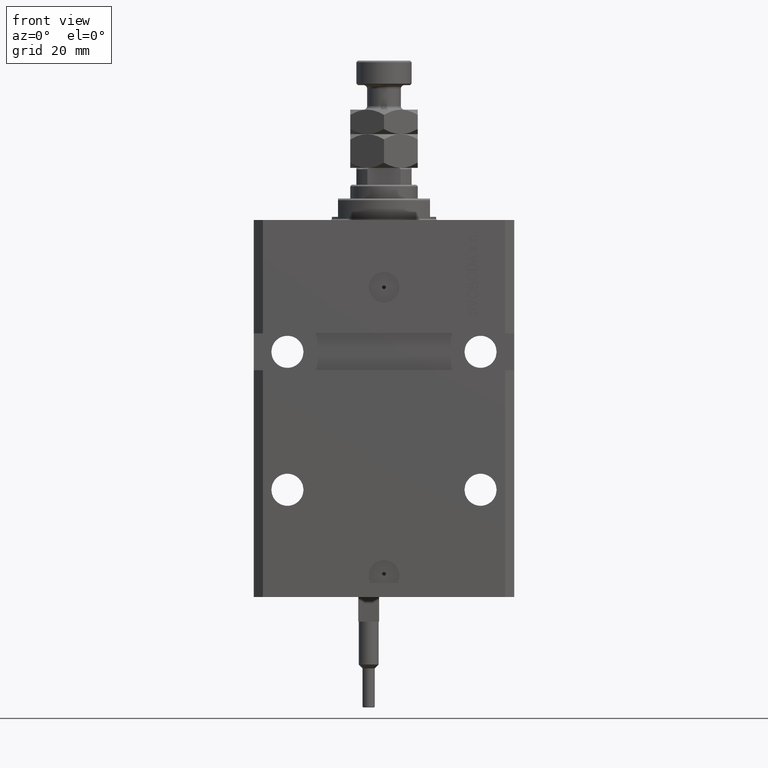
[diagram: clean part render]
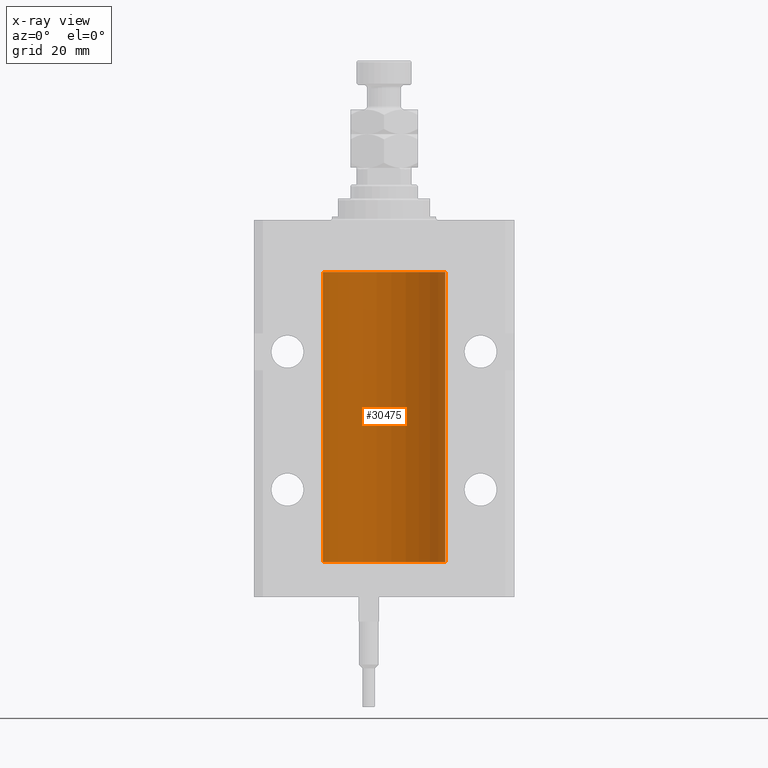
[diagram: x-ray — body ghosted, one internal face saturated and labeled with its STEP entity id]
A machine part, front view, then the same camera in x-ray: the body is ghosted and one INTERNAL B-rep face — a face not visible from any outside direction — is saturated and labeled: STEP entity #30475.
In plain terms, the highlighted cylindrical surface (partial cylindrical patch) has radius 20 mm, axis along (0, 0, 1).
Its self-contained STEP definition (entity closure, byte-faithful):
#193 = CARTESIAN_POINT ( 'NONE',  ( 19.99947351343144319, 0.1636818329565372654, -109.6087285571564536 ) ) ;
#465 = VERTEX_POINT ( 'NONE', #23616 ) ;
#482 = CARTESIAN_POINT ( 'NONE',  ( -20.00000000000000000, 2.449293598294706513E-15, -111.5999999999999943 ) ) ;
#1192 = CARTESIAN_POINT ( 'NONE',  ( 19.99023198964909298, 0.6250000000081574747, -108.9999999999991047 ) ) ;
#1347 = CARTESIAN_POINT ( 'NONE',  ( 19.99023198964909298, 0.6250000000081574747, -108.9999999999991047 ) ) ;
#3789 = CARTESIAN_POINT ( 'NONE',  ( 19.99023198964909298, 0.6250000000081508134, -23.99999999999910472 ) ) ;
#4522 = AXIS2_PLACEMENT_3D ( 'NONE', #13387, #29016, #44864 ) ;
#4841 = CARTESIAN_POINT ( 'NONE',  ( 19.99999999999999645, 0.08261455565447944904, -24.62499999999999289 ) ) ;
#4959 = CARTESIAN_POINT ( 'NONE',  ( 0.000000000000000000, 0.000000000000000000, -111.5999999999999943 ) ) ;
#5602 = CARTESIAN_POINT ( 'NONE',  ( 20.00000000000000000, 2.480610556832390753E-15, -24.62500000000000000 ) ) ;
#5843 = CARTESIAN_POINT ( 'NONE',  ( 19.99638788807192924, 0.3844440352705381647, -24.49948058986479893 ) ) ;
#6077 = B_SPLINE_CURVE_WITH_KNOTS ( 'NONE', 3,
 ( #3789, #19392, #36001, #39088, #8616, #12445 ),
 .UNSPECIFIED., .F., .F.,
 ( 4, 2, 4 ),
 ( 0.0009772989342736271377, 0.001465726722058853775, 0.001954154509844080196 ),
 .UNSPECIFIED. ) ;
#6766 = DIRECTION ( 'NONE',  ( 1.000000000000000000, 0.000000000000000000, 0.000000000000000000 ) ) ;
#7609 = B_SPLINE_CURVE_WITH_KNOTS ( 'NONE', 3,
 ( #19646, #35248, #193, #15803, #31406, #8119, #23734, #1192 ),
 .UNSPECIFIED., .F., .F.,
 ( 4, 2, 2, 4 ),
 ( 3.944467879762244826E-18, 0.0002443247335684012008, 0.0004886494671367983900, 0.0009772989342736221503 ),
 .UNSPECIFIED. ) ;
#8119 = CARTESIAN_POINT ( 'NONE',  ( 19.99256353007439202, 0.5574106582031174151, -109.3263903518011517 ) ) ;
#8143 = CARTESIAN_POINT ( 'NONE',  ( 19.99023198964909298, 0.6250000000081574747, -108.9999999999991047 ) ) ;
#8394 = CARTESIAN_POINT ( 'NONE',  ( 19.99253733128256627, 0.5586305947779004466, -108.6747603673526044 ) ) ;
#8407 = LINE ( 'NONE', #482, #20009 ) ;
#8616 = CARTESIAN_POINT ( 'NONE',  ( 19.99999999999999645, 0.1631318418333146114, -23.37500000000016698 ) ) ;
#8706 = B_SPLINE_CURVE_WITH_KNOTS ( 'NONE', 3,
 ( #8143, #24004, #8394, #39112, #39608, #15320 ),
 .UNSPECIFIED., .F., .F.,
 ( 4, 2, 4 ),
 ( 0.0009772989342736221503, 0.001465726722058849005, 0.001954154509844075859 ),
 .UNSPECIFIED. ) ;
#8811 = VECTOR ( 'NONE', #24277, 1000.000000000000000 ) ;
#10086 = FACE_OUTER_BOUND ( 'NONE', #45900, .T. ) ;
#12009 = VECTOR ( 'NONE', #18713, 1000.000000000000000 ) ;
#12445 = CARTESIAN_POINT ( 'NONE',  ( 20.00000000000010303, 3.555666340528858977E-13, -23.37499999999667111 ) ) ;
#12508 = EDGE_CURVE ( 'NONE', #23894, #21850, #8407, .T. ) ;
#13387 = CARTESIAN_POINT ( 'NONE',  ( 0.000000000000000000, 0.000000000000000000, -17.00000000000000000 ) ) ;
#14176 = CARTESIAN_POINT ( 'NONE',  ( 0.000000000000000000, 0.000000000000000000, -111.5999999999999943 ) ) ;
#14222 = B_SPLINE_CURVE_WITH_KNOTS ( 'NONE', 3,
 ( #5602, #4841, #36793, #20449, #5843, #21452, #48567, #29137 ),
 .UNSPECIFIED., .F., .F.,
 ( 4, 2, 2, 4 ),
 ( 3.558729249985022577E-18, 0.0002443247335684094949, 0.0004886494671368154120, 0.0009772989342736271377 ),
 .UNSPECIFIED. ) ;
#14265 = CIRCLE ( 'NONE', #32232, 20.00000000000000000 ) ;
#15320 = CARTESIAN_POINT ( 'NONE',  ( 20.00000000000010303, 3.555666352936568165E-13, -108.3749999999966747 ) ) ;
#15568 = ORIENTED_EDGE ( 'NONE', *, *, #30916, .T. ) ;
#15618 = ORIENTED_EDGE ( 'NONE', *, *, #16775, .T. ) ;
#15803 = CARTESIAN_POINT ( 'NONE',  ( 19.99766100389833312, 0.3150982863324784944, -109.5459443824127987 ) ) ;
#15864 = EDGE_CURVE ( 'NONE', #465, #23894, #14265, .T. ) ;
#16521 = CARTESIAN_POINT ( 'NONE',  ( 20.00000000000000000, -4.058908006348821872E-15, -109.6250000000000000 ) ) ;
#16775 = EDGE_CURVE ( 'NONE', #21963, #21850, #33936, .T. ) ;
#17763 = AXIS2_PLACEMENT_3D ( 'NONE', #14176, #29801, #6766 ) ;
#18467 = CARTESIAN_POINT ( 'NONE',  ( 20.00000000000010303, 3.555666352936568165E-13, -108.3749999999966747 ) ) ;
#18713 = DIRECTION ( 'NONE',  ( -0.000000000000000000, -0.000000000000000000, 1.000000000000000000 ) ) ;
#18747 = VERTEX_POINT ( 'NONE', #50119 ) ;
#18967 = LINE ( 'NONE', #37905, #12009 ) ;
#19193 = VERTEX_POINT ( 'NONE', #16521 ) ;
#19392 = CARTESIAN_POINT ( 'NONE',  ( 19.99023198964935588, 0.6249999999995746736, -23.83696384779806721 ) ) ;
#19646 = CARTESIAN_POINT ( 'NONE',  ( 20.00000000000000000, -4.058908006348821872E-15, -109.6250000000000000 ) ) ;
#20009 = VECTOR ( 'NONE', #43480, 1000.000000000000000 ) ;
#20449 = CARTESIAN_POINT ( 'NONE',  ( 19.99766100389832957, 0.3150982863324739425, -24.54594438241279164 ) ) ;
#20700 = VERTEX_POINT ( 'NONE', #36118 ) ;
#21452 = CARTESIAN_POINT ( 'NONE',  ( 19.99256353007439202, 0.5574106582031160828, -24.32639035180114817 ) ) ;
#21591 = DIRECTION ( 'NONE',  ( -0.000000000000000000, -0.000000000000000000, 1.000000000000000000 ) ) ;
#21850 = VERTEX_POINT ( 'NONE', #38237 ) ;
#21963 = VERTEX_POINT ( 'NONE', #24883 ) ;
#23386 = EDGE_CURVE ( 'NONE', #20700, #21963, #36052, .T. ) ;
#23493 = ORIENTED_EDGE ( 'NONE', *, *, #42794, .T. ) ;
#23616 = CARTESIAN_POINT ( 'NONE',  ( 20.00000000000000000, 0.000000000000000000, -111.5999999999999943 ) ) ;
#23734 = CARTESIAN_POINT ( 'NONE',  ( 19.99023198964934167, 0.6250000000002757794, -109.1631101482932706 ) ) ;
#23894 = VERTEX_POINT ( 'NONE', #45645 ) ;
#24004 = CARTESIAN_POINT ( 'NONE',  ( 19.99023198964936299, 0.6249999999995806688, -108.8369638477980885 ) ) ;
#24277 = DIRECTION ( 'NONE',  ( -0.000000000000000000, -0.000000000000000000, 1.000000000000000000 ) ) ;
#24571 = CARTESIAN_POINT ( 'NONE',  ( 19.99023198964909298, 0.6250000000081508134, -23.99999999999910472 ) ) ;
#24883 = CARTESIAN_POINT ( 'NONE',  ( 20.00000000000000000, 0.000000000000000000, -17.00000000000000000 ) ) ;
#25523 = ORIENTED_EDGE ( 'NONE', *, *, #23386, .T. ) ;
#26886 = EDGE_CURVE ( 'NONE', #45364, #20700, #6077, .T. ) ;
#28123 = EDGE_CURVE ( 'NONE', #465, #19193, #41036, .T. ) ;
#28915 = ORIENTED_EDGE ( 'NONE', *, *, #28123, .T. ) ;
#29016 = DIRECTION ( 'NONE',  ( 0.000000000000000000, 0.000000000000000000, 1.000000000000000000 ) ) ;
#29137 = CARTESIAN_POINT ( 'NONE',  ( 19.99023198964909298, 0.6250000000081508134, -23.99999999999910472 ) ) ;
#29801 = DIRECTION ( 'NONE',  ( -0.000000000000000000, -0.000000000000000000, 1.000000000000000000 ) ) ;
#30475 = ADVANCED_FACE ( 'NONE', ( #10086 ), #37466, .F. ) ;
#30916 = EDGE_CURVE ( 'NONE', #44240, #18747, #18967, .T. ) ;
#31406 = CARTESIAN_POINT ( 'NONE',  ( 19.99638788807192924, 0.3844440352705359998, -109.4994805898647883 ) ) ;
#31700 = ORIENTED_EDGE ( 'NONE', *, *, #48527, .T. ) ;
#32071 = ORIENTED_EDGE ( 'NONE', *, *, #12508, .F. ) ;
#32214 = ORIENTED_EDGE ( 'NONE', *, *, #26886, .T. ) ;
#32232 = AXIS2_PLACEMENT_3D ( 'NONE', #4959, #47936, #46933 ) ;
#32466 = ORIENTED_EDGE ( 'NONE', *, *, #33272, .T. ) ;
#33272 = EDGE_CURVE ( 'NONE', #19193, #50068, #7609, .T. ) ;
#33936 = CIRCLE ( 'NONE', #4522, 20.00000000000000000 ) ;
#35248 = CARTESIAN_POINT ( 'NONE',  ( 19.99999999999999645, 0.08261455565447825555, -109.6249999999999574 ) ) ;
#36001 = CARTESIAN_POINT ( 'NONE',  ( 19.99253733128256272, 0.5586305947778931191, -23.67476036735258305 ) ) ;
#36052 = LINE ( 'NONE', #39136, #8811 ) ;
#36118 = CARTESIAN_POINT ( 'NONE',  ( 20.00000000000010303, 3.555666340528858977E-13, -23.37499999999667111 ) ) ;
#36793 = CARTESIAN_POINT ( 'NONE',  ( 19.99947351343144675, 0.1636818329565332686, -24.60872855715644292 ) ) ;
#37466 = CYLINDRICAL_SURFACE ( 'NONE', #17763, 20.00000000000000000 ) ;
#37905 = CARTESIAN_POINT ( 'NONE',  ( 20.00000000000000000, 0.000000000000000000, -111.5999999999999943 ) ) ;
#38237 = CARTESIAN_POINT ( 'NONE',  ( -20.00000000000000000, 2.449293598294706513E-15, -17.00000000000000000 ) ) ;
#38917 = VECTOR ( 'NONE', #21591, 1000.000000000000000 ) ;
#39088 = CARTESIAN_POINT ( 'NONE',  ( 19.99769474220010679, 0.3253030616682399123, -23.44140633897632142 ) ) ;
#39112 = CARTESIAN_POINT ( 'NONE',  ( 19.99769474220011034, 0.3253030616682413001, -108.4414063389763072 ) ) ;
#39136 = CARTESIAN_POINT ( 'NONE',  ( 20.00000000000000000, 0.000000000000000000, -111.5999999999999943 ) ) ;
#39608 = CARTESIAN_POINT ( 'NONE',  ( 19.99999999999999645, 0.1631318418333158327, -108.3750000000001705 ) ) ;
#41036 = LINE ( 'NONE', #44879, #38917 ) ;
#42794 = EDGE_CURVE ( 'NONE', #18747, #45364, #14222, .T. ) ;
#43480 = DIRECTION ( 'NONE',  ( -0.000000000000000000, -0.000000000000000000, 1.000000000000000000 ) ) ;
#44240 = VERTEX_POINT ( 'NONE', #18467 ) ;
#44864 = DIRECTION ( 'NONE',  ( 1.000000000000000000, 0.000000000000000000, 0.000000000000000000 ) ) ;
#44879 = CARTESIAN_POINT ( 'NONE',  ( 20.00000000000000000, 0.000000000000000000, -111.5999999999999943 ) ) ;
#45364 = VERTEX_POINT ( 'NONE', #24571 ) ;
#45645 = CARTESIAN_POINT ( 'NONE',  ( -20.00000000000000000, 2.449293598294706513E-15, -111.5999999999999943 ) ) ;
#45900 = EDGE_LOOP ( 'NONE', ( #32071, #46811, #28915, #32466, #31700, #15568, #23493, #32214, #25523, #15618 ) ) ;
#46811 = ORIENTED_EDGE ( 'NONE', *, *, #15864, .F. ) ;
#46933 = DIRECTION ( 'NONE',  ( 1.000000000000000000, 0.000000000000000000, 0.000000000000000000 ) ) ;
#47936 = DIRECTION ( 'NONE',  ( 0.000000000000000000, 0.000000000000000000, 1.000000000000000000 ) ) ;
#48527 = EDGE_CURVE ( 'NONE', #50068, #44240, #8706, .T. ) ;
#48567 = CARTESIAN_POINT ( 'NONE',  ( 19.99023198964933812, 0.6250000000002681189, -24.16311014829328130 ) ) ;
#50068 = VERTEX_POINT ( 'NONE', #1347 ) ;
#50119 = CARTESIAN_POINT ( 'NONE',  ( 20.00000000000000000, 2.480610556832390753E-15, -24.62500000000000000 ) ) ;